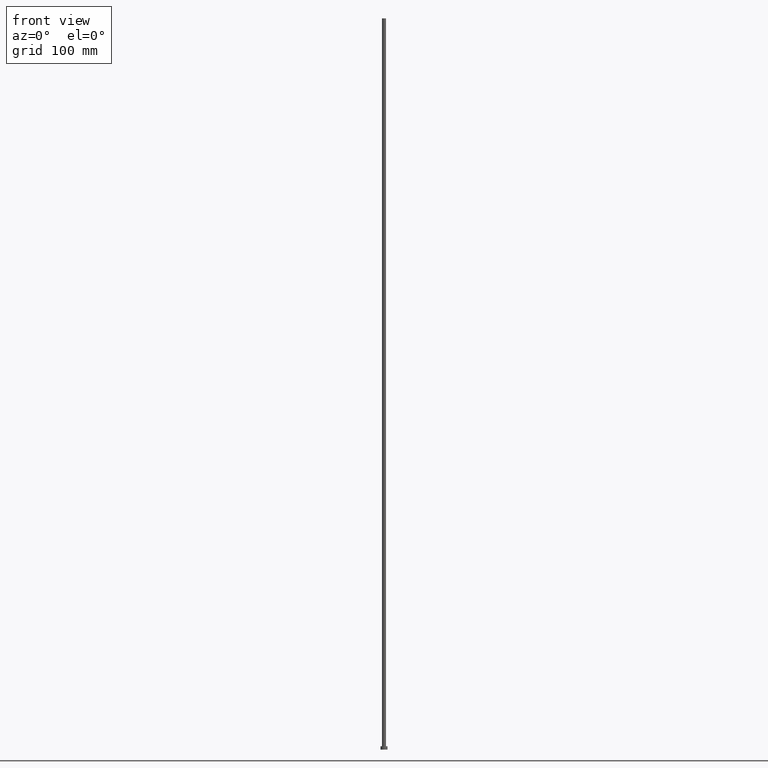
[diagram: clean part render]
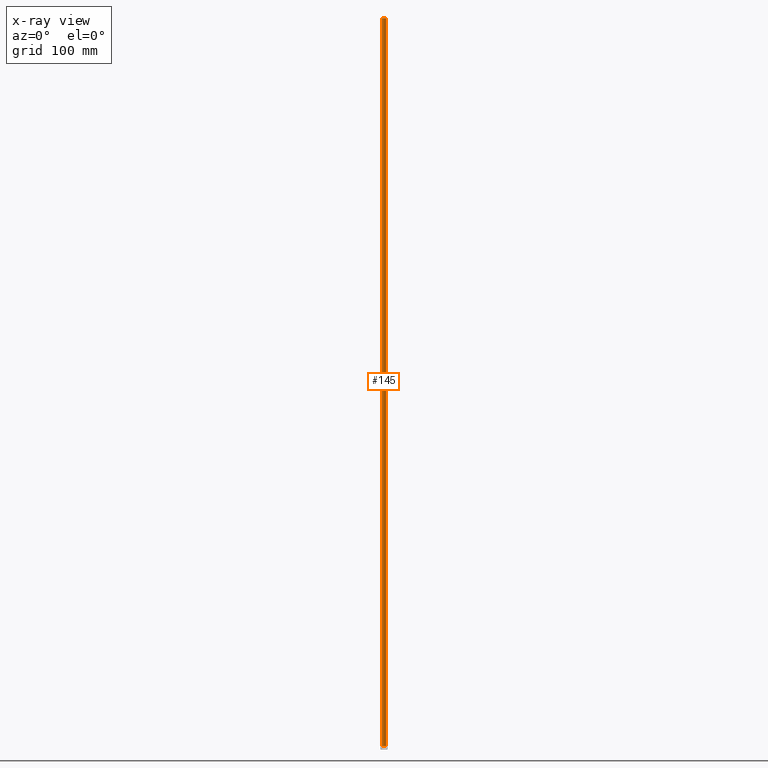
[diagram: x-ray — body ghosted, one internal face saturated and labeled with its STEP entity id]
A machine part, front view, then the same camera in x-ray: the body is ghosted and one INTERNAL B-rep face — a face not visible from any outside direction — is saturated and labeled: STEP entity #145.
In plain terms, the highlighted cylindrical surface (edge-blend (fillet) strip) has radius 1.75 mm, axis along (-0, -0, -1).
Its self-contained STEP definition (entity closure, byte-faithful):
#9 = CIRCLE ( 'NONE', #92, 1.750000000000000000 ) ;
#12 = DIRECTION ( 'NONE',  ( 1.000000000000000000, 0.000000000000000000, 0.000000000000000000 ) ) ;
#13 = ORIENTED_EDGE ( 'NONE', *, *, #27, .F. ) ;
#27 = EDGE_CURVE ( 'NONE', #103, #159, #9, .T. ) ;
#29 = DIRECTION ( 'NONE',  ( -1.000000000000000000, 0.000000000000000000, 0.000000000000000000 ) ) ;
#35 = CYLINDRICAL_SURFACE ( 'NONE', #120, 1.750000000000000000 ) ;
#41 = LINE ( 'NONE', #161, #139 ) ;
#45 = DIRECTION ( 'NONE',  ( -0.000000000000000000, -0.000000000000000000, -1.000000000000000000 ) ) ;
#58 = CARTESIAN_POINT ( 'NONE',  ( 1.750000000000000000, 2.143131898507868297E-16, 630.0000000000000000 ) ) ;
#60 = LINE ( 'NONE', #61, #96 ) ;
#61 = CARTESIAN_POINT ( 'NONE',  ( -1.750000000000000000, 0.000000000000000000, 630.0000000000000000 ) ) ;
#65 = DIRECTION ( 'NONE',  ( 0.000000000000000000, 0.000000000000000000, 1.000000000000000000 ) ) ;
#77 = CARTESIAN_POINT ( 'NONE',  ( 1.750000000000000000, 2.143131898507868297E-16, 3.000000000000000000 ) ) ;
#92 = AXIS2_PLACEMENT_3D ( 'NONE', #126, #200, #204 ) ;
#96 = VECTOR ( 'NONE', #147, 1000.000000000000000 ) ;
#103 = VERTEX_POINT ( 'NONE', #58 ) ;
#120 = AXIS2_PLACEMENT_3D ( 'NONE', #217, #199, #29 ) ;
#121 = FACE_OUTER_BOUND ( 'NONE', #248, .T. ) ;
#126 = CARTESIAN_POINT ( 'NONE',  ( 0.000000000000000000, 0.000000000000000000, 630.0000000000000000 ) ) ;
#137 = ORIENTED_EDGE ( 'NONE', *, *, #219, .F. ) ;
#139 = VECTOR ( 'NONE', #45, 1000.000000000000000 ) ;
#143 = ORIENTED_EDGE ( 'NONE', *, *, #195, .T. ) ;
#145 = ADVANCED_FACE ( 'NONE', ( #121 ), #35, .T. ) ;
#147 = DIRECTION ( 'NONE',  ( -0.000000000000000000, -0.000000000000000000, -1.000000000000000000 ) ) ;
#154 = CIRCLE ( 'NONE', #198, 1.750000000000000000 ) ;
#159 = VERTEX_POINT ( 'NONE', #201 ) ;
#160 = EDGE_CURVE ( 'NONE', #103, #180, #41, .T. ) ;
#161 = CARTESIAN_POINT ( 'NONE',  ( 1.750000000000000000, 2.143131898507868297E-16, 630.0000000000000000 ) ) ;
#163 = CARTESIAN_POINT ( 'NONE',  ( 0.000000000000000000, 0.000000000000000000, 3.000000000000000000 ) ) ;
#180 = VERTEX_POINT ( 'NONE', #77 ) ;
#195 = EDGE_CURVE ( 'NONE', #180, #218, #154, .T. ) ;
#198 = AXIS2_PLACEMENT_3D ( 'NONE', #163, #65, #12 ) ;
#199 = DIRECTION ( 'NONE',  ( -0.000000000000000000, -0.000000000000000000, -1.000000000000000000 ) ) ;
#200 = DIRECTION ( 'NONE',  ( 0.000000000000000000, 0.000000000000000000, 1.000000000000000000 ) ) ;
#201 = CARTESIAN_POINT ( 'NONE',  ( -1.750000000000000000, 0.000000000000000000, 630.0000000000000000 ) ) ;
#204 = DIRECTION ( 'NONE',  ( 1.000000000000000000, 0.000000000000000000, 0.000000000000000000 ) ) ;
#217 = CARTESIAN_POINT ( 'NONE',  ( 0.000000000000000000, 0.000000000000000000, 630.0000000000000000 ) ) ;
#218 = VERTEX_POINT ( 'NONE', #247 ) ;
#219 = EDGE_CURVE ( 'NONE', #159, #218, #60, .T. ) ;
#247 = CARTESIAN_POINT ( 'NONE',  ( -1.750000000000000000, 0.000000000000000000, 3.000000000000000000 ) ) ;
#248 = EDGE_LOOP ( 'NONE', ( #13, #250, #143, #137 ) ) ;
#250 = ORIENTED_EDGE ( 'NONE', *, *, #160, .T. ) ;